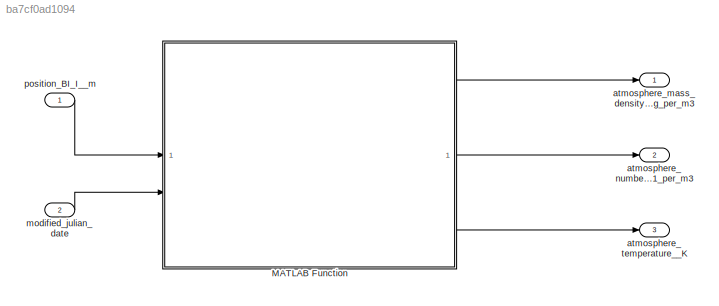
MODEL slx_ba7cf0ad1094
KIND model
CONFIG AbsTol = auto
CONFIG EnableMultiTasking = off
CONFIG FixedStep = 1
CONFIG MaxStep = auto
CONFIG MinStep = auto
CONFIG RelTol = 1e-3
CONFIG SampleTimeConstraint = Unconstrained
CONFIG SolverName = FixedStepDiscrete
CONFIG StartTime = 0.0
CONFIG StopTime = 1
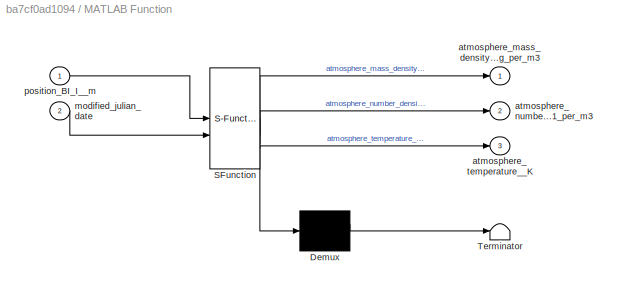
BLOCK [SubSystem] MATLAB Function
  ErrorFcn = Stateflow.Translate.translate
  LibrarySourceBlock = simulink/User-Defined\nFunctions/MATLAB Function
  PermitHierarchicalResolution = ExplicitOnly
  SFBlockType = MATLAB Function
  TreatAsAtomicUnit = on
BLOCK [Demux] MATLAB Function/ Demux 
  Outputs = 1
BLOCK [S-Function] MATLAB Function/ SFunction 
  EnableBusSupport = on
  FunctionName = sf_sfun
  Parameters = Parameters
  PortCounts = [2 4]
  SFcnIsStateOwnerBlock = off
  SFunctionDeploymentMode = off
  Tag = Stateflow S-Function 2
BLOCK [Terminator] MATLAB Function/ Terminator 
BLOCK [Outport] MATLAB Function/atmosphere_mass_density__kg_per_m3
BLOCK [Outport] MATLAB Function/atmosphere_number_density__1_per_m3
  Port = 2
BLOCK [Outport] MATLAB Function/atmosphere_temperature__K
  Port = 3
BLOCK [Inport] MATLAB Function/modified_julian_date
  Port = 2
BLOCK [Inport] MATLAB Function/position_BI_I__m
BLOCK [Outport] atmosphere_mass_density__kg_per_m3
BLOCK [Outport] atmosphere_number_density__1_per_m3
  Port = 2
BLOCK [Outport] atmosphere_temperature__K
  Port = 3
BLOCK [Inport] modified_julian_date
  Port = 2
BLOCK [Inport] position_BI_I__m
  PortDimensions = [3,1]
  SignalType = real
  VarSizeSig = No
LINE MATLAB Function:1 -> atmosphere_mass_density__kg_per_m3:1
LINE MATLAB Function:2 -> atmosphere_number_density__1_per_m3:1
LINE MATLAB Function:3 -> atmosphere_temperature__K:1
LINE modified_julian_date:1 -> MATLAB Function:2
LINE position_BI_I__m:1 -> MATLAB Function:1
CHART MATLAB Function states=1 transitions=1
  STATE_LABEL 'eML_blk_kernel()'
  STATE_LABEL 'SCRIPT:\nfunction [atmosphere_mass_density__kg_per_m3, atmosphere_number_density__1_per_m3, atmosphere_temperature__K] = fcn(position_BI_I__m, modified_julian_date, Parameters)\n\n\n[atmosphere_mass_density__kg_per_m3, atmosphere_number_density__1_per_m3, atmosphere_temperature__K] = Nrlmsise00.execute(position_BI_I__m, [1; 0; 0; 0], modified_julian_date, Parameters);'
CHART  states=0 transitions=0
